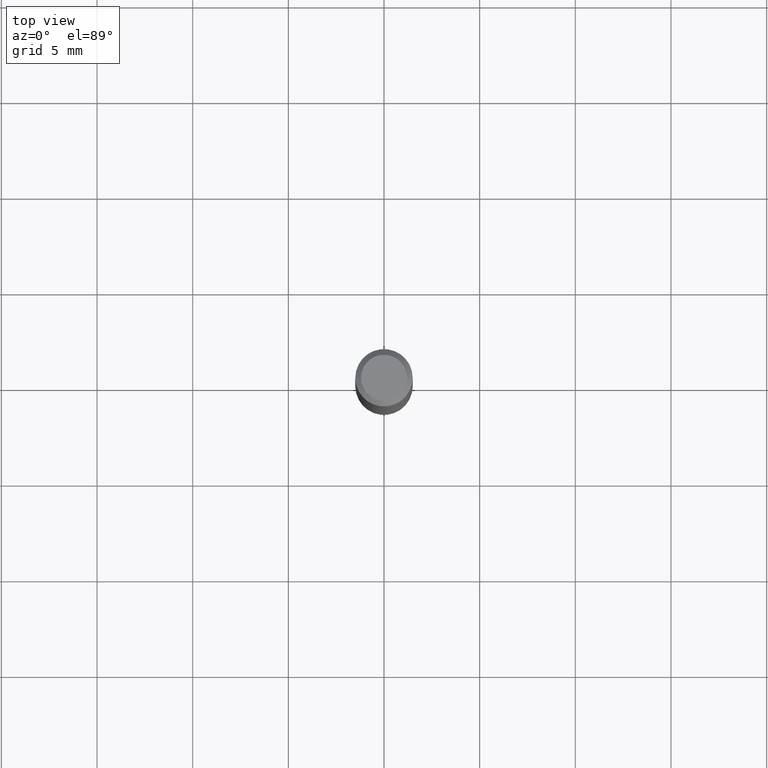
[diagram: clean part render]
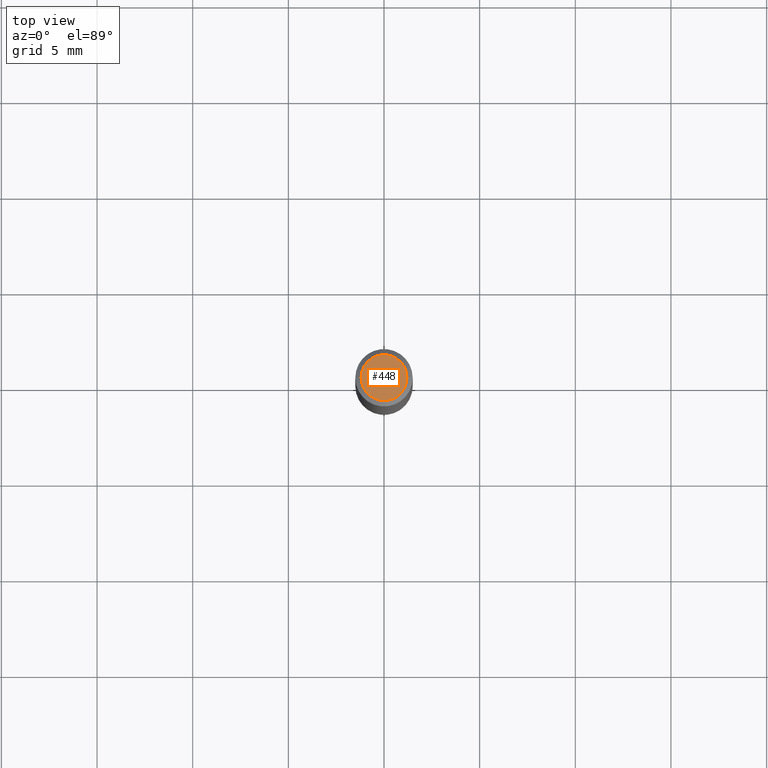
[diagram: same view with one face highlighted and labeled with its STEP entity id]
A machine part, top view. The second image highlights one B-rep face of the part: STEP entity #448.
In plain terms, the highlighted planar face has unit normal (0, -0, -1).
Its self-contained STEP definition (entity closure, byte-faithful):
#7 = DIRECTION ( 'NONE',  ( 1.000000000000000000, -6.982962677686266711E-15, 4.876185090822587894E-29 ) ) ;
#20 = CARTESIAN_POINT ( 'NONE',  ( 0.04724000000000000421, -3.852183633974369838E-16, -3.380025165621689721E-19 ) ) ;
#23 = FACE_OUTER_BOUND ( 'NONE', #270, .T. ) ;
#29 = EDGE_CURVE ( 'NONE', #235, #150, #477, .T. ) ;
#45 = CARTESIAN_POINT ( 'NONE',  ( -0.04724000000000000421, 3.504923541997677355E-16, -3.380025165670481712E-19 ) ) ;
#51 = DIRECTION ( 'NONE',  ( -2.445468806185136597E-29, 3.491481338843145583E-15, 1.000000000000000000 ) ) ;
#150 = VERTEX_POINT ( 'NONE', #45 ) ;
#177 = CARTESIAN_POINT ( 'NONE',  ( 4.132873053354867254E-48, -5.900647395337818946E-34, -1.690012582823346072E-19 ) ) ;
#189 = CIRCLE ( 'NONE', #345, 0.04724000000000000421 ) ;
#191 = CARTESIAN_POINT ( 'NONE',  ( 8.265746106709734507E-48, -1.180129479067563789E-33, -3.380025165646692144E-19 ) ) ;
#205 = DIRECTION ( 'NONE',  ( 1.000000000000000000, -6.982962677686266711E-15, 4.876185090822587894E-29 ) ) ;
#235 = VERTEX_POINT ( 'NONE', #20 ) ;
#249 = AXIS2_PLACEMENT_3D ( 'NONE', #177, #277, #331 ) ;
#255 = AXIS2_PLACEMENT_3D ( 'NONE', #191, #347, #7 ) ;
#270 = EDGE_LOOP ( 'NONE', ( #326, #287 ) ) ;
#277 = DIRECTION ( 'NONE',  ( 2.438088387897960049E-29, -3.491481338843145188E-15, -1.000000000000000000 ) ) ;
#287 = ORIENTED_EDGE ( 'NONE', *, *, #29, .T. ) ;
#326 = ORIENTED_EDGE ( 'NONE', *, *, #350, .T. ) ;
#331 = DIRECTION ( 'NONE',  ( -1.000000000000000000, 6.982962677686265922E-15, -4.876176775795935793E-29 ) ) ;
#345 = AXIS2_PLACEMENT_3D ( 'NONE', #393, #51, #205 ) ;
#347 = DIRECTION ( 'NONE',  ( -2.445468806185136597E-29, 3.491481338843145583E-15, 1.000000000000000000 ) ) ;
#350 = EDGE_CURVE ( 'NONE', #150, #235, #189, .T. ) ;
#393 = CARTESIAN_POINT ( 'NONE',  ( 8.265746106709734507E-48, -1.180129479067563789E-33, -3.380025165646692144E-19 ) ) ;
#437 = PLANE ( 'NONE',  #249 ) ;
#448 = ADVANCED_FACE ( 'NONE', ( #23 ), #437, .F. ) ;
#477 = CIRCLE ( 'NONE', #255, 0.04724000000000000421 ) ;